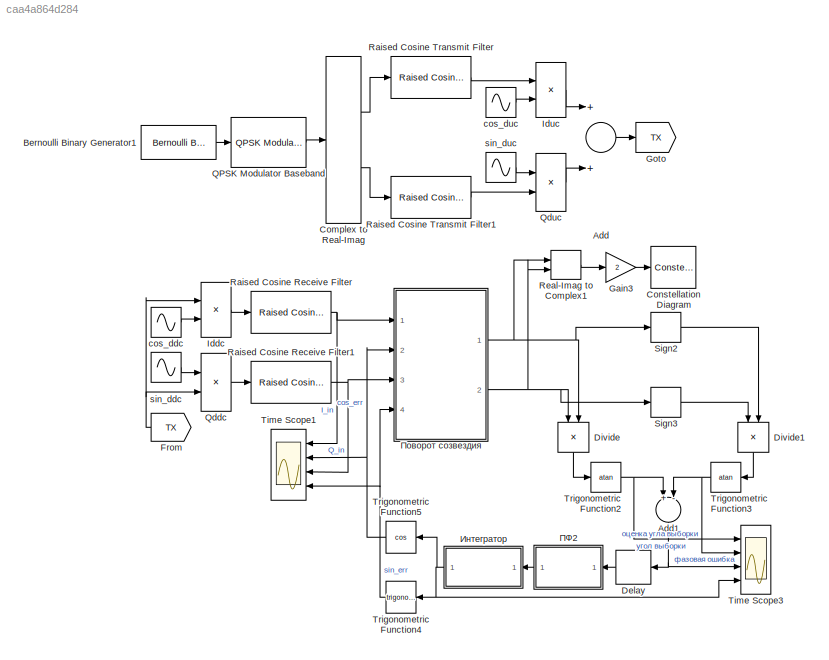
MODEL slx_caa4a864d284
KIND model
CONFIG AbsTol = auto
CONFIG EnableMultiTasking = off
CONFIG FixedStep = auto
CONFIG MaxStep = auto
CONFIG MinStep = auto
CONFIG PreLoadFcn = Rbit   = 100e3;    % битовая скорость\nRsyml = Rbit/2;    % символьная скорость\nfs = 2.4e6;        % частота дискретизации АЦП\ninterp = fs/Rsyml; % коэффициент передискретизации\nfc = 600e3;        % несущая частота, Гц\nfe = 400;          % частотный сдвиг, Гц\n% параметры контура ФАПЧ\nT = 1/fs;          % период дискретизации\nKp = 1/2;           % КУ ФД\nBn = 25000;         % шумовая полоса, Гц\nKo = ...<+152ch>
CONFIG RelTol = 1e-3
CONFIG SampleTimeConstraint = Unconstrained
CONFIG Solver = VariableStepAuto
CONFIG SolverName = VariableStepAuto
CONFIG StartTime = 0.0
CONFIG StopTime = 50000/fs
BLOCK [Sum] Add
  InputSameDT = off
  OutDataTypeStr = Inherit: Inherit via internal rule
  Ports = [2, 1]
  SaturateOnIntegerOverflow = off
BLOCK [Sum] Add1
  InputSameDT = off
  Inputs = +-
  OutDataTypeStr = Inherit: Inherit via internal rule
  Ports = [2, 1]
  SaturateOnIntegerOverflow = off
BLOCK [Reference] Bernoulli Binary Generator1  REF=commrandsrc3/Bernoulli Binary
Generator
  Ports = [0, 1]
  SourceBlock = commrandsrc3/Bernoulli Binary\nGenerator
  SourceProductBaseCode = CM
  SourceProductName = Communications System Toolbox
  SourceType = Bernoulli Binary Generator
BLOCK [ComplexToRealImag] Complex to Real-Imag
  Ports = [1, 2]
BLOCK [ConstellationDiagram] Constellation Diagram
  Ports = [1]
  ScopeSpecificationString = comm.scopes.ConstellationDiagramBlockCfg('CurrentConfiguration', extmgr.ConfigurationSet(extmgr.Configuration('Core','General UI',true,'FigureColor',[1 1 1]),extmgr.Configuration('Core','Source UI',true),extmgr.Configuration('Sources','WiredSimulink',true),extmgr.Configuration('Sources','SimulinkEvent',false),extmgr.Configuration('Sources','Simulink',false),extmgr.Configuration('Sources','SPTool',...<+2326ch>
BLOCK [Delay] Delay
  DelayLength = 1
  InitialCondition = 0
  InputPortMap = u0
  Ports = [1, 1]
BLOCK [Product] Divide
  InputSameDT = off
  Inputs = */
  OutDataTypeStr = Inherit: Inherit via internal rule
  Ports = [2, 1]
  RndMeth = Floor
  SaturateOnIntegerOverflow = off
BLOCK [Product] Divide1
  InputSameDT = off
  Inputs = */
  OutDataTypeStr = Inherit: Inherit via internal rule
  Ports = [2, 1]
  RndMeth = Floor
  SaturateOnIntegerOverflow = off
BLOCK [From] From
  GotoTag = TX
BLOCK [Gain] Gain3
  Gain = 2
  OutDataTypeStr = Inherit: Inherit via internal rule
  ParamDataTypeStr = Inherit: Inherit via internal rule
  SaturateOnIntegerOverflow = off
BLOCK [Goto] Goto
  GotoTag = TX
BLOCK [Product] Iddc
  InputSameDT = off
  OutDataTypeStr = Inherit: Inherit via internal rule
  Ports = [2, 1]
  RndMeth = Floor
  SaturateOnIntegerOverflow = off
BLOCK [Product] Iduc
  InputSameDT = off
  OutDataTypeStr = Inherit: Inherit via internal rule
  Ports = [2, 1]
  RndMeth = Floor
  SaturateOnIntegerOverflow = off
BLOCK [Reference] QPSK Modulator Baseband  REF=commdigbbndpm3/QPSK
Modulator
Baseband
  Ports = [1, 1]
  SourceBlock = commdigbbndpm3/QPSK\nModulator\nBaseband
  SourceProductBaseCode = CM
  SourceProductName = Communications System Toolbox
  SourceType = QPSK Modulator Baseband
BLOCK [Product] Qddc
  InputSameDT = off
  OutDataTypeStr = Inherit: Inherit via internal rule
  Ports = [2, 1]
  RndMeth = Floor
  SaturateOnIntegerOverflow = off
BLOCK [Product] Qduc
  InputSameDT = off
  OutDataTypeStr = Inherit: Inherit via internal rule
  Ports = [2, 1]
  RndMeth = Floor
  SaturateOnIntegerOverflow = off
BLOCK [Reference] Raised Cosine Receive Filter  REF=commfilt2/Raised Cosine
Receive Filter
  Ports = [1, 1]
  SourceBlock = commfilt2/Raised Cosine\nReceive Filter
  SourceProductBaseCode = CM
  SourceProductName = Communications System Toolbox
  SourceType = Raised Cosine Receive Filter
BLOCK [Reference] Raised Cosine Receive Filter1  REF=commfilt2/Raised Cosine
Receive Filter
  Ports = [1, 1]
  SourceBlock = commfilt2/Raised Cosine\nReceive Filter
  SourceProductBaseCode = CM
  SourceProductName = Communications System Toolbox
  SourceType = Raised Cosine Receive Filter
BLOCK [Reference] Raised Cosine Transmit Filter  REF=commfilt2/Raised Cosine
Transmit Filter
  Ports = [1, 1]
  SourceBlock = commfilt2/Raised Cosine\nTransmit Filter
  SourceProductBaseCode = CM
  SourceProductName = Communications System Toolbox
  SourceType = Raised Cosine Transmit Filter
BLOCK [Reference] Raised Cosine Transmit Filter1  REF=commfilt2/Raised Cosine
Transmit Filter
  Ports = [1, 1]
  SourceBlock = commfilt2/Raised Cosine\nTransmit Filter
  SourceProductBaseCode = CM
  SourceProductName = Communications System Toolbox
  SourceType = Raised Cosine Transmit Filter
BLOCK [RealImagToComplex] Real-Imag to Complex1
  Ports = [2, 1]
BLOCK [Signum] Sign2
BLOCK [Signum] Sign3
BLOCK [Scope] Time Scope1
  DefaultConfigurationName = spbscopes.TimeScopeBlockCfg
  Floating = off
  NumInputPorts = 4
  Ports = [4]
  ScopeSpecificationString = spbscopes.TimeScopeBlockCfg('CurrentConfiguration', extmgr.ConfigurationSet(extmgr.Configuration('Core','General UI',true,'FigureColor',[1 1 1]),extmgr.Configuration('Core','Source UI',true),extmgr.Configuration('Sources','WiredSimulink',true,'DataLoggingVariableName','ScopeData1'),extmgr.Configuration('Visuals','Time Domain',true,'DisplayLayoutDimensions',[4 1],'DisplayPropertyDefaults',struct('Y...<+4010ch>
  UserDataPersistent = on
BLOCK [Scope] Time Scope3
  DefaultConfigurationName = spbscopes.TimeScopeBlockCfg
  Floating = off
  NumInputPorts = 4
  Ports = [4]
  ScopeSpecificationString = spbscopes.TimeScopeBlockCfg('CurrentConfiguration', extmgr.ConfigurationSet(extmgr.Configuration('Core','General UI',true,'FigureColor',[1 1 1]),extmgr.Configuration('Core','Source UI',true),extmgr.Configuration('Sources','WiredSimulink',true,'DataLoggingVariableName','ScopeData1'),extmgr.Configuration('Visuals','Time Domain',true,'DisplayLayoutDimensions',[4 1],'DisplayPropertyDefaults',struct('Y...<+4051ch>
  UserDataPersistent = on
BLOCK [Trigonometry] Trigonometric Function2
  Operator = atan
  OutputSignalType = real
  Ports = [1, 1]
BLOCK [Trigonometry] Trigonometric Function3
  Operator = atan
  OutputSignalType = real
  Ports = [1, 1]
BLOCK [Trigonometry] Trigonometric Function4
  Ports = [1, 1]
BLOCK [Trigonometry] Trigonometric Function5
  Operator = cos
  Ports = [1, 1]
BLOCK [Sin] cos_ddc
  Frequency = fc*2*pi
  Phase = pi/2
  Ports = [0, 1]
  SampleTime = 1/fs
BLOCK [Sin] cos_duc
  Frequency = (fc+fe)*2*pi
  Phase = pi/2
  Ports = [0, 1]
  SampleTime = 1/fs
BLOCK [Sin] sin_ddc
  Frequency = fc*2*pi
  Ports = [0, 1]
  SampleTime = 1/fs
BLOCK [Sin] sin_duc
  Frequency = (fc+fe)*2*pi
  Ports = [0, 1]
  SampleTime = 1/fs
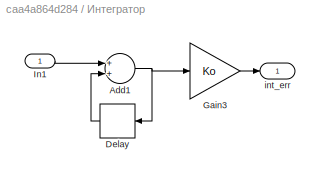
BLOCK [SubSystem] Интегратор
  Ports = [1, 1]
  RequestExecContextInheritance = off
BLOCK [Sum] Интегратор/Add1
  InputSameDT = off
  OutDataTypeStr = Inherit: Inherit via internal rule
  Ports = [2, 1]
  SaturateOnIntegerOverflow = off
BLOCK [Delay] Интегратор/Delay
  DelayLength = 1
  InputPortMap = u0
  Ports = [1, 1]
BLOCK [Gain] Интегратор/Gain3
  Gain = Ko
  OutDataTypeStr = Inherit: Inherit via internal rule
  ParamDataTypeStr = Inherit: Inherit via internal rule
  SaturateOnIntegerOverflow = off
BLOCK [Inport] Интегратор/In1
  IconDisplay = Port number
BLOCK [Outport] Интегратор/int_err
  IconDisplay = Port number
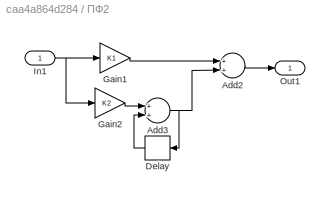
BLOCK [SubSystem] ПФ2
  Ports = [1, 1]
  RequestExecContextInheritance = off
BLOCK [Sum] ПФ2/Add2
  InputSameDT = off
  OutDataTypeStr = Inherit: Inherit via internal rule
  Ports = [2, 1]
  SaturateOnIntegerOverflow = off
BLOCK [Sum] ПФ2/Add3
  InputSameDT = off
  OutDataTypeStr = Inherit: Inherit via internal rule
  Ports = [2, 1]
  SaturateOnIntegerOverflow = off
BLOCK [Delay] ПФ2/Delay
  DelayLength = 1
  InitialCondition = 0
  InputPortMap = u0
  Ports = [1, 1]
BLOCK [Gain] ПФ2/Gain1
  Gain = K1
  OutDataTypeStr = Inherit: Inherit via internal rule
  ParamDataTypeStr = Inherit: Inherit via internal rule
  SaturateOnIntegerOverflow = off
BLOCK [Gain] ПФ2/Gain2
  Gain = K2
  OutDataTypeStr = Inherit: Inherit via internal rule
  ParamDataTypeStr = Inherit: Inherit via internal rule
  SaturateOnIntegerOverflow = off
BLOCK [Inport] ПФ2/In1
  IconDisplay = Port number
BLOCK [Outport] ПФ2/Out1
  IconDisplay = Port number
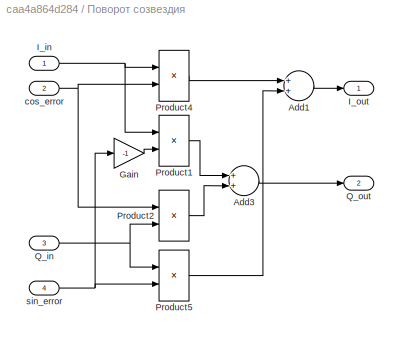
BLOCK [SubSystem] Поворот созвездия 
  Ports = [4, 2]
  RequestExecContextInheritance = off
BLOCK [Sum] Поворот созвездия /Add1
  InputSameDT = off
  OutDataTypeStr = Inherit: Inherit via internal rule
  Ports = [2, 1]
  SaturateOnIntegerOverflow = off
BLOCK [Sum] Поворот созвездия /Add3
  InputSameDT = off
  OutDataTypeStr = Inherit: Inherit via internal rule
  Ports = [2, 1]
  SaturateOnIntegerOverflow = off
BLOCK [Gain] Поворот созвездия /Gain
  Gain = -1
  OutDataTypeStr = Inherit: Inherit via internal rule
  ParamDataTypeStr = Inherit: Inherit via internal rule
  SaturateOnIntegerOverflow = off
BLOCK [Inport] Поворот созвездия /I_in
  IconDisplay = Port number
BLOCK [Outport] Поворот созвездия /I_out
  IconDisplay = Port number
BLOCK [Product] Поворот созвездия /Product1
  InputSameDT = off
  OutDataTypeStr = Inherit: Inherit via internal rule
  Ports = [2, 1]
  RndMeth = Floor
  SaturateOnIntegerOverflow = off
BLOCK [Product] Поворот созвездия /Product2
  InputSameDT = off
  OutDataTypeStr = Inherit: Inherit via internal rule
  Ports = [2, 1]
  RndMeth = Floor
  SaturateOnIntegerOverflow = off
BLOCK [Product] Поворот созвездия /Product4
  InputSameDT = off
  OutDataTypeStr = Inherit: Inherit via internal rule
  Ports = [2, 1]
  RndMeth = Floor
  SaturateOnIntegerOverflow = off
BLOCK [Product] Поворот созвездия /Product5
  InputSameDT = off
  OutDataTypeStr = Inherit: Inherit via internal rule
  Ports = [2, 1]
  RndMeth = Floor
  SaturateOnIntegerOverflow = off
BLOCK [Inport] Поворот созвездия /Q_in
  IconDisplay = Port number
  Port = 3
BLOCK [Outport] Поворот созвездия /Q_out
  IconDisplay = Port number
  Port = 2
BLOCK [Inport] Поворот созвездия /cos_error
  IconDisplay = Port number
  Port = 2
BLOCK [Inport] Поворот созвездия /sin_error
  IconDisplay = Port number
  Port = 4
NET Add1:1 -> Delay:1, Time Scope3:3
LINE Add:1 -> Goto:1
LINE Bernoulli Binary Generator1:1 -> QPSK Modulator Baseband:1
LINE Complex to Real-Imag:1 -> Raised Cosine Transmit Filter:1
LINE Complex to Real-Imag:2 -> Raised Cosine Transmit Filter1:1
LINE Delay:1 -> ПФ2:1
LINE Divide1:1 -> Trigonometric Function3:1
LINE Divide:1 -> Trigonometric Function2:1
NET From:1 -> Iddc:1, Qddc:2
LINE Gain3:1 -> Constellation Diagram:1
LINE Iddc:1 -> Raised Cosine Receive Filter:1
LINE Iduc:1 -> Add:1
LINE QPSK Modulator Baseband:1 -> Complex to Real-Imag:1
LINE Qddc:1 -> Raised Cosine Receive Filter1:1
LINE Qduc:1 -> Add:2
NET Raised Cosine Receive Filter1:1 -> Time Scope1:3, Поворот созвездия :3
NET Raised Cosine Receive Filter:1 -> Time Scope1:1, Поворот созвездия :1
LINE Raised Cosine Transmit Filter1:1 -> Qduc:2
LINE Raised Cosine Transmit Filter:1 -> Iduc:1
LINE Real-Imag to Complex1:1 -> Gain3:1
LINE Sign2:1 -> Divide1:2
LINE Sign3:1 -> Divide1:1
NET Trigonometric Function2:1 -> Add1:1, Time Scope3:1
NET Trigonometric Function3:1 -> Add1:2, Time Scope3:2
NET Trigonometric Function4:1 -> Time Scope1:4, Поворот созвездия :4
NET Trigonometric Function5:1 -> Time Scope1:2, Поворот созвездия :2
LINE cos_ddc:1 -> Iddc:2
LINE cos_duc:1 -> Iduc:2
LINE sin_ddc:1 -> Qddc:1
LINE sin_duc:1 -> Qduc:1
NET Интегратор/Add1:1 -> Интегратор/Delay:1, Интегратор/Gain3:1
LINE Интегратор/Delay:1 -> Интегратор/Add1:2
LINE Интегратор/Gain3:1 -> Интегратор/int_err:1
LINE Интегратор/In1:1 -> Интегратор/Add1:1
NET Интегратор:1 -> Time Scope3:4, Trigonometric Function4:1, Trigonometric Function5:1
LINE ПФ2/Add2:1 -> ПФ2/Out1:1
NET ПФ2/Add3:1 -> ПФ2/Add2:2, ПФ2/Delay:1
LINE ПФ2/Delay:1 -> ПФ2/Add3:2
LINE ПФ2/Gain1:1 -> ПФ2/Add2:1
LINE ПФ2/Gain2:1 -> ПФ2/Add3:1
NET ПФ2/In1:1 -> ПФ2/Gain1:1, ПФ2/Gain2:1
LINE ПФ2:1 -> Интегратор:1
LINE Поворот созвездия /Add1:1 -> Поворот созвездия /I_out:1
LINE Поворот созвездия /Add3:1 -> Поворот созвездия /Q_out:1
LINE Поворот созвездия /Gain:1 -> Поворот созвездия /Product1:2
NET Поворот созвездия /I_in:1 -> Поворот созвездия /Product1:1, Поворот созвездия /Product4:1
LINE Поворот созвездия /Product1:1 -> Поворот созвездия /Add3:1
LINE Поворот созвездия /Product2:1 -> Поворот созвездия /Add3:2
LINE Поворот созвездия /Product4:1 -> Поворот созвездия /Add1:1
LINE Поворот созвездия /Product5:1 -> Поворот созвездия /Add1:2
NET Поворот созвездия /Q_in:1 -> Поворот созвездия /Product2:2, Поворот созвездия /Product5:1
NET Поворот созвездия /cos_error:1 -> Поворот созвездия /Product2:1, Поворот созвездия /Product4:2
NET Поворот созвездия /sin_error:1 -> Поворот созвездия /Gain:1, Поворот созвездия /Product5:2
NET Поворот созвездия :1 -> Divide:2, Real-Imag to Complex1:1, Sign2:1
NET Поворот созвездия :2 -> Divide:1, Real-Imag to Complex1:2, Sign3:1
note: NET lines group one-source signal fan-out (src -> all destinations, sorted); 1:1 wires keep LINE
